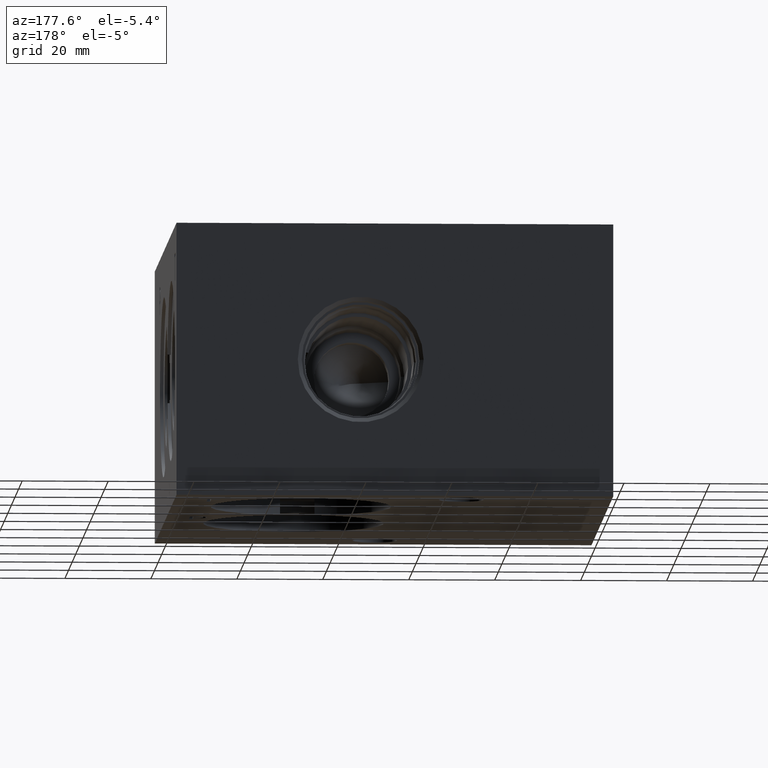
[diagram: clean part render]
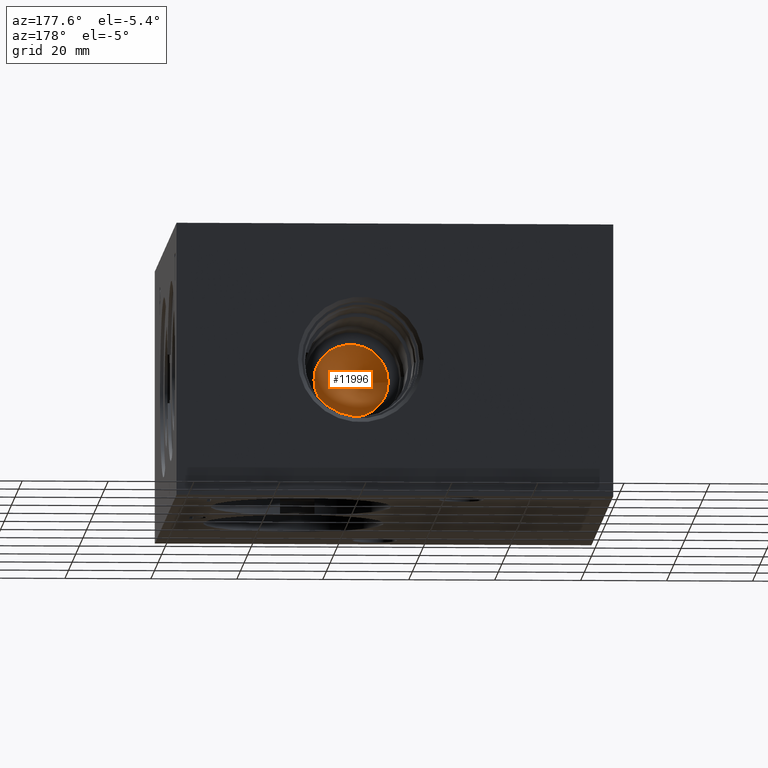
[diagram: same view with one face highlighted and labeled with its STEP entity id]
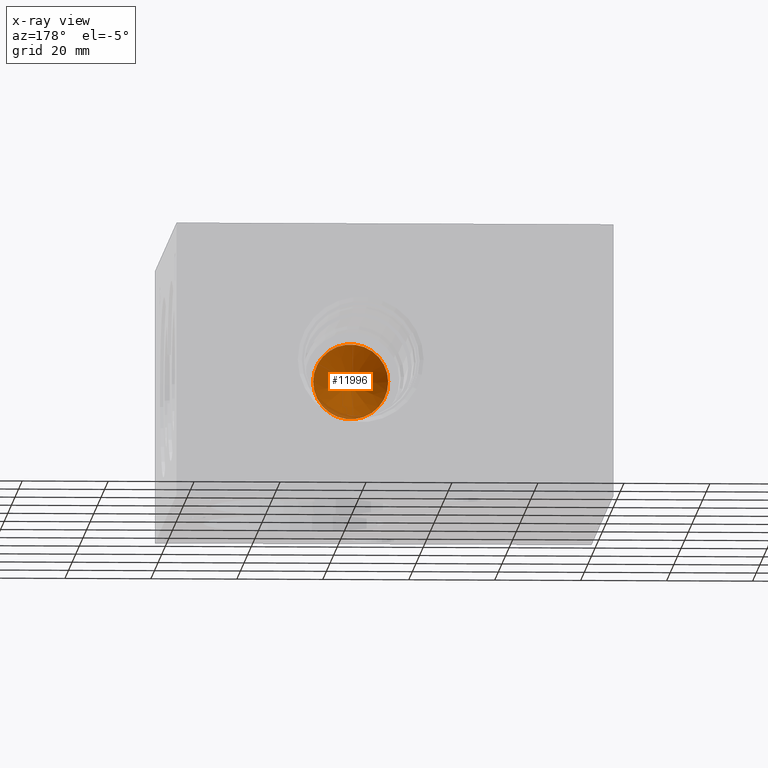
[diagram: x-ray of the same camera — body ghosted, the highlighted face saturated]
A machine part, auxiliary view. The second image highlights one B-rep face of the part: STEP entity #11996.
The next image is the same camera in x-ray: the body ghosted, the highlighted face saturated — about 4% of this face is hidden behind the body in this view.
In plain terms, the highlighted conical surface has half-angle 60 deg.
Its self-contained STEP definition (entity closure, byte-faithful):
#127=CONICAL_SURFACE('',#12660,8.7376,1.04719755223275);
#310=CIRCLE('',#12658,8.7376);
#311=CIRCLE('',#12659,8.7376);
#1490=FACE_OUTER_BOUND('',#2165,.T.);
#2165=EDGE_LOOP('',(#10371,#10372,#10373,#10374));
#3310=LINE('',#20546,#4420);
#4420=VECTOR('',#15068,8.7376);
#5502=VERTEX_POINT('',#20539);
#5503=VERTEX_POINT('',#20541);
#5504=VERTEX_POINT('',#20545);
#7154=EDGE_CURVE('',#5502,#5503,#310,.T.);
#7155=EDGE_CURVE('',#5503,#5502,#311,.T.);
#7156=EDGE_CURVE('',#5502,#5504,#3310,.T.);
#10371=ORIENTED_EDGE('',*,*,#7155,.F.);
#10372=ORIENTED_EDGE('',*,*,#7154,.F.);
#10373=ORIENTED_EDGE('',*,*,#7156,.T.);
#10374=ORIENTED_EDGE('',*,*,#7156,.F.);
#11996=ADVANCED_FACE('',(#1490),#127,.F.);
#12658=AXIS2_PLACEMENT_3D('',#20542,#15062,#15063);
#12659=AXIS2_PLACEMENT_3D('',#20543,#15064,#15065);
#12660=AXIS2_PLACEMENT_3D('',#20544,#15066,#15067);
#15062=DIRECTION('center_axis',(0.,-1.,0.));
#15063=DIRECTION('ref_axis',(1.,0.,0.));
#15064=DIRECTION('center_axis',(0.,-1.,0.));
#15065=DIRECTION('ref_axis',(1.,0.,0.));
#15066=DIRECTION('center_axis',(0.,1.,0.));
#15067=DIRECTION('ref_axis',(1.,0.,0.));
#15068=DIRECTION('',(0.866025404302513,-0.499999999102669,1.06057523935937E-16));
#20539=CARTESIAN_POINT('',(50.0126,64.9577443,31.75));
#20541=CARTESIAN_POINT('',(67.4878,64.9577443,31.75));
#20542=CARTESIAN_POINT('Origin',(58.7502,64.9577443,31.75));
#20543=CARTESIAN_POINT('Origin',(58.7502,64.9577443,31.75));
#20544=CARTESIAN_POINT('Origin',(58.7502,64.9577443,31.75));
#20545=CARTESIAN_POINT('',(58.7502,59.9130886,31.75));
#20546=CARTESIAN_POINT('',(50.0126,64.9577443,31.75));